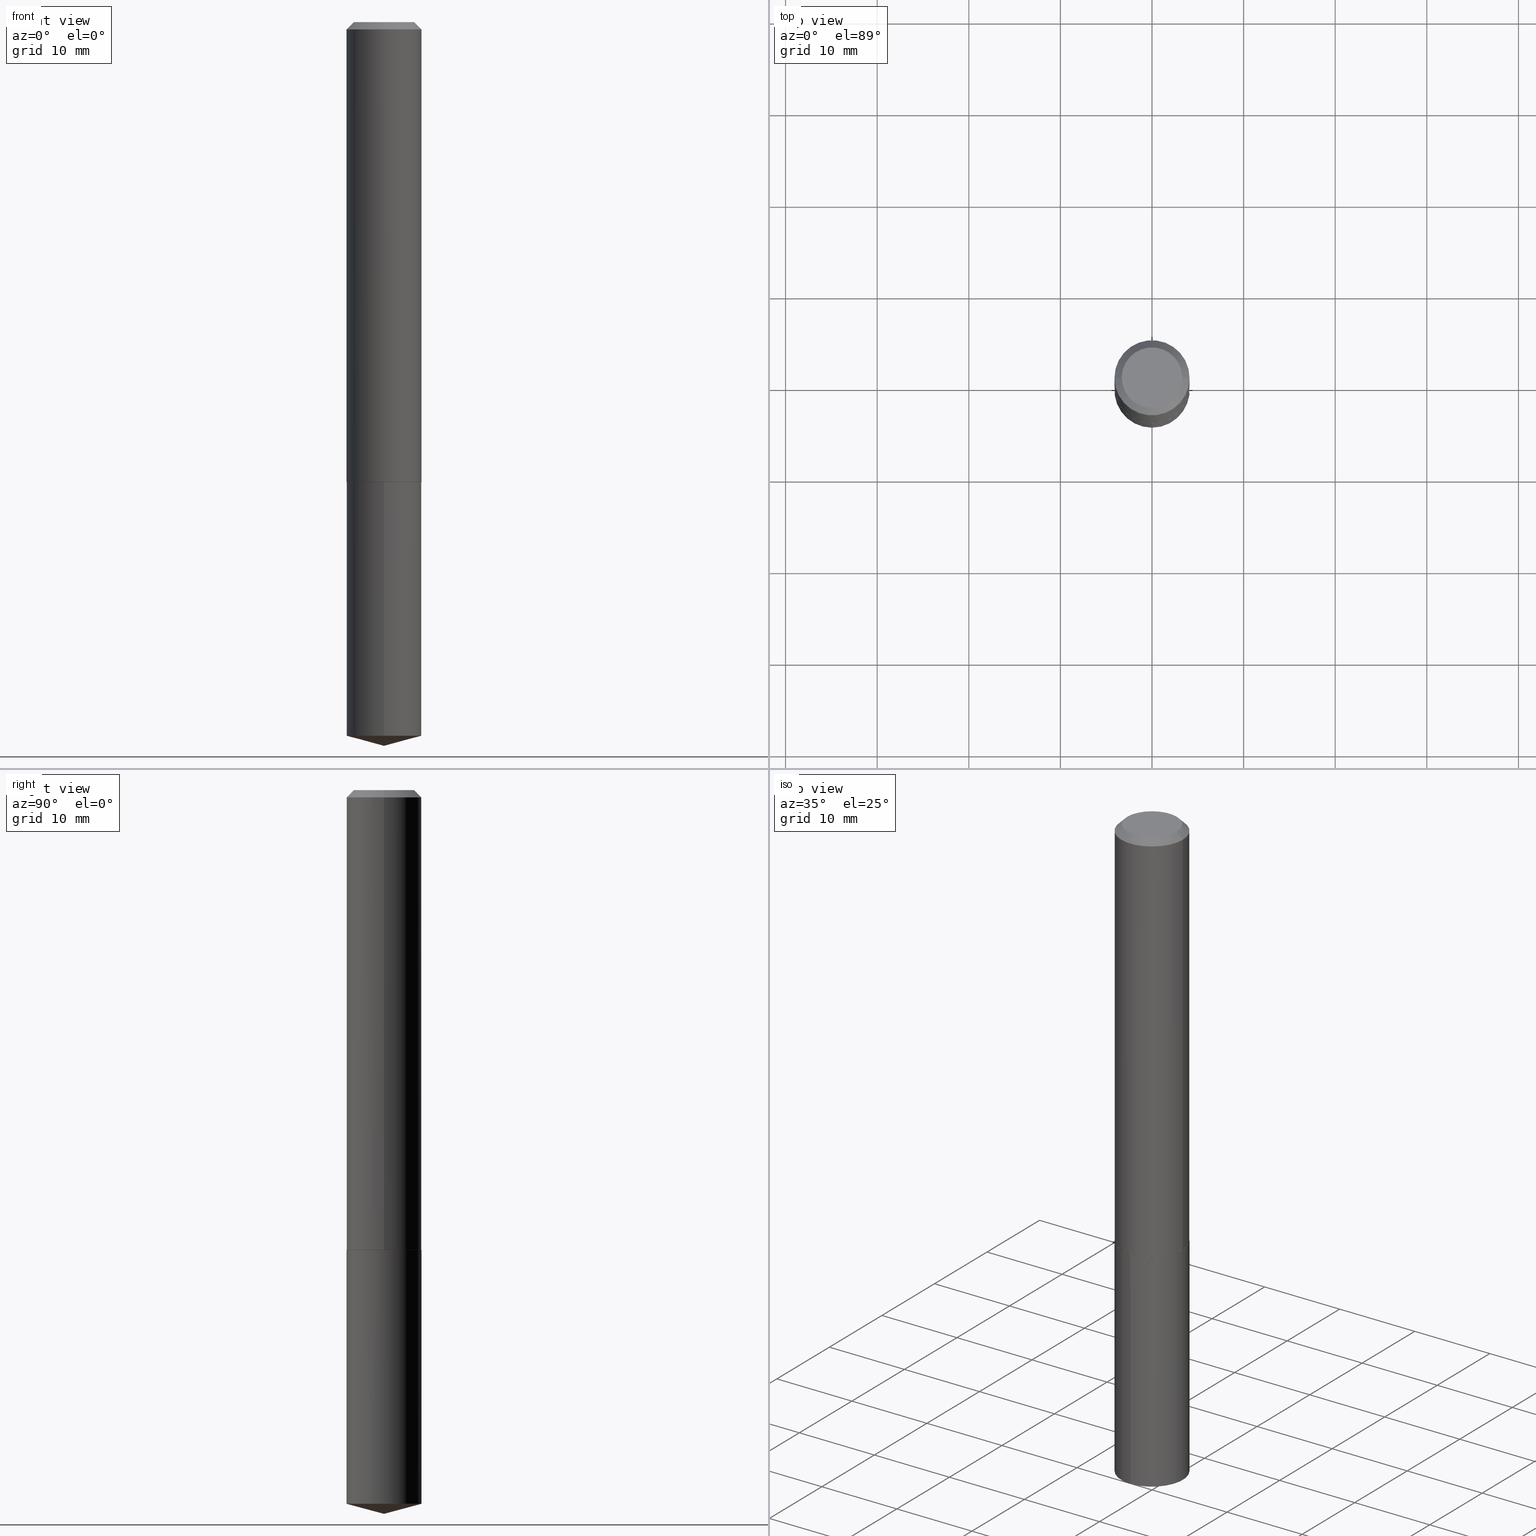
[diagram: canonical four-view strip — front | top / right | iso, engineering-drawing reading convention]
A machine part, canonical four-view strip (front | top / right | iso — engineering-drawing reading convention). The complete STEP part file that produces these views, byte-faithful:
ISO-10303-21;
HEADER;
FILE_DESCRIPTION (( 'STEP AP203' ),
    '1' );
FILE_NAME ('69017.STEP',
    '2024-04-23T14:21:37',
    ( '' ),
    ( '' ),
    'SwSTEP 2.0',
    'SolidWorks 2023',
    '' );
FILE_SCHEMA (( 'CONFIG_CONTROL_DESIGN' ));
ENDSEC;

DATA;
#1 = DIRECTION ( 'NONE',  ( -2.445468806185136597E-29, 3.491481338843145583E-15, 1.000000000000000000 ) ) ;
#2 = EDGE_LOOP ( 'NONE', ( #226, #380, #129, #104 ) ) ;
#3 = EDGE_CURVE ( 'NONE', #171, #206, #213, .T. ) ;
#4 = DIRECTION ( 'NONE',  ( 0.7071067811865452413, -7.319954787623248157E-15, -0.7071067811865497932 ) ) ;
#5 = CC_DESIGN_PERSON_AND_ORGANIZATION_ASSIGNMENT ( #154, #96, ( #368 ) ) ;
#6 = CARTESIAN_POINT ( 'NONE',  ( 0.000000000000000000, 0.000000000000000000, 0.000000000000000000 ) ) ;
#7 = EDGE_CURVE ( 'NONE', #228, #206, #263, .T. ) ;
#8 = PERSON ( 'UNSPECIFIED', 'UNSPECIFIED', 'UNSPECIFIED', ('UNSPECIFIED'), ('UNSPECIFIED'), ('UNSPECIFIED') ) ;
#9 = PERSON_AND_ORGANIZATION ( #8, #132 ) ;
#10 = UNCERTAINTY_MEASURE_WITH_UNIT (LENGTH_MEASURE( 1.000000000000000082E-05 ), #38, 'distance_accuracy_value', 'NONE');
#11 = DATE_TIME_ROLE ( 'creation_date' ) ;
#12 = EDGE_CURVE ( 'NONE', #138, #228, #279, .T. ) ;
#13 = CC_DESIGN_APPROVAL ( #39, ( #204 ) ) ;
#14 = ORIENTED_EDGE ( 'NONE', *, *, #309, .T. ) ;
#15 = CIRCLE ( 'NONE', #126, 0.1614000000000002100 ) ;
#16 = DIRECTION ( 'NONE',  ( -1.000000000000000000, 6.982962677686266711E-15, 0.000000000000000000 ) ) ;
#17 = ORIENTED_EDGE ( 'NONE', *, *, #336, .F. ) ;
#18 = LOCAL_TIME ( 10, 21, 37.00000000000000000, #42 ) ;
#19 = CONICAL_SURFACE ( 'NONE', #72, 0.1613999999999999879, 0.7853981633974450594 ) ;
#20 = CYLINDRICAL_SURFACE ( 'NONE', #249, 0.1613999999999999879 ) ;
#21 = VECTOR ( 'NONE', #111, 39.37007874015748143 ) ;
#22 = VERTEX_POINT ( 'NONE', #332 ) ;
#23 = CARTESIAN_POINT ( 'NONE',  ( -1.127050176178487994E-15, -0.1614000000000106461, -3.066953000341617663 ) ) ;
#24 = ORIENTED_EDGE ( 'NONE', *, *, #136, .F. ) ;
#25 = CC_DESIGN_DATE_AND_TIME_ASSIGNMENT ( #257, #11, ( #368 ) ) ;
#26 = CYLINDRICAL_SURFACE ( 'NONE', #197, 0.1614000000000000989 ) ;
#27 = ORIENTED_EDGE ( 'NONE', *, *, #136, .T. ) ;
#28 = FACE_OUTER_BOUND ( 'NONE', #78, .T. ) ;
#29 = AXIS2_PLACEMENT_3D ( 'NONE', #137, #81, #268 ) ;
#30 = VERTEX_POINT ( 'NONE', #144 ) ;
#31 = EDGE_CURVE ( 'NONE', #228, #48, #357, .T. ) ;
#32 = CARTESIAN_POINT ( 'NONE',  ( 0.1614000000000002100, -8.025519005464851751E-15, -1.975800000000000001 ) ) ;
#33 = CARTESIAN_POINT ( 'NONE',  ( -5.839929314523095191E-48, 8.337871319498967861E-34, 2.388061258337300918E-19 ) ) ;
#34 = CONICAL_SURFACE ( 'NONE', #256, 0.1614000000000002100, 0.7853981633973118326 ) ;
#35 =( NAMED_UNIT ( * ) PLANE_ANGLE_UNIT ( ) SI_UNIT ( $, .RADIAN. ) );
#36 = DIRECTION ( 'NONE',  ( 1.000000000000000000, -6.982962677686266711E-15, 0.000000000000000000 ) ) ;
#37 = AXIS2_PLACEMENT_3D ( 'NONE', #120, #182, #273 ) ;
#38 =( CONVERSION_BASED_UNIT ( 'INCH', #312 ) LENGTH_UNIT ( ) NAMED_UNIT ( #355 ) );
#39 = APPROVAL ( #161, 'UNSPECIFIED' ) ;
#40 = COORDINATED_UNIVERSAL_TIME_OFFSET ( 5, 0, .BEHIND. ) ;
#41 = AXIS2_PLACEMENT_3D ( 'NONE', #76, #326, #382 ) ;
#42 = COORDINATED_UNIVERSAL_TIME_OFFSET ( 5, 0, .BEHIND. ) ;
#43 = COORDINATED_UNIVERSAL_TIME_OFFSET ( 5, 0, .BEHIND. ) ;
#44 = MANIFOLD_SOLID_BREP ( 'Body-Move/Copy2[2]', #169 ) ;
#45 = ORIENTED_EDGE ( 'NONE', *, *, #283, .T. ) ;
#46 = CARTESIAN_POINT ( 'NONE',  ( 7.642090019328602662E-31, -1.091087918388490267E-16, -0.03125000000000020817 ) ) ;
#47 = CC_DESIGN_DATE_AND_TIME_ASSIGNMENT ( #367, #70, ( #155 ) ) ;
#48 = VERTEX_POINT ( 'NONE', #60 ) ;
#49 = DIRECTION ( 'NONE',  ( -2.445414552692694796E-29, 3.491559032932239035E-15, 1.000000000000000000 ) ) ;
#50 = EDGE_LOOP ( 'NONE', ( #148, #88, #265, #267 ) ) ;
#51 = MANIFOLD_SOLID_BREP ( 'Body-Move/Copy2[1]', #236 ) ;
#52 = CARTESIAN_POINT ( 'NONE',  ( -5.839929314523095191E-48, 8.337871319498967861E-34, 2.388061258337300918E-19 ) ) ;
#53 = CIRCLE ( 'NONE', #222, 0.1609000000000004593 ) ;
#54 = ORIENTED_EDGE ( 'NONE', *, *, #351, .T. ) ;
#55 = CARTESIAN_POINT ( 'NONE',  ( 0.1613999999999999879, -1.236158968017412234E-15, -0.03125000000000020817 ) ) ;
#56 = CARTESIAN_POINT ( 'NONE',  ( 7.642090019328602662E-31, -1.091087918388490267E-16, -0.03125000000000020817 ) ) ;
#57 = CARTESIAN_POINT ( 'NONE',  ( -0.1613999999999999879, 1.017941384339714230E-15, -0.03125000000000020817 ) ) ;
#58 = FACE_OUTER_BOUND ( 'NONE', #2, .T. ) ;
#59 = AXIS2_PLACEMENT_3D ( 'NONE', #307, #253, #36 ) ;
#60 = CARTESIAN_POINT ( 'NONE',  ( -0.1613999999999999879, -2.356972835045764977E-15, -0.03125000000000020817 ) ) ;
#61 = PERSON_AND_ORGANIZATION ( #8, #132 ) ;
#62 = FACE_OUTER_BOUND ( 'NONE', #288, .T. ) ;
#63 = DIRECTION ( 'NONE',  ( 1.000000000000000000, -6.982962677686266711E-15, 0.000000000000000000 ) ) ;
#64 = ADVANCED_FACE ( 'NONE', ( #62 ), #92, .F. ) ;
#65 = CARTESIAN_POINT ( 'NONE',  ( -0.1614000000000000989, 1.146815975516802403E-15, -7.939161235671423092E-30 ) ) ;
#66 = CARTESIAN_POINT ( 'NONE',  ( 0.1613999999999999879, -1.216393168679174147E-15, -0.03125000000000020817 ) ) ;
#67 = CONICAL_SURFACE ( 'NONE', #286, 146.9311341562595885, 1.308996938995754977 ) ;
#68 = CARTESIAN_POINT ( 'NONE',  ( 4.832980001663685166E-29, -6.900214569955707952E-15, -1.976299999999999946 ) ) ;
#69 = APPROVAL_PERSON_ORGANIZATION ( #99, #341, #337 ) ;
#70 = DATE_TIME_ROLE ( 'classification_date' ) ;
#71 = PERSON_AND_ORGANIZATION ( #8, #132 ) ;
#72 = AXIS2_PLACEMENT_3D ( 'NONE', #56, #347, #266 ) ;
#73 = CIRCLE ( 'NONE', #186, 0.1301499999999999879 ) ;
#74 = EDGE_CURVE ( 'NONE', #174, #48, #384, .T. ) ;
#75 = ORIENTED_EDGE ( 'NONE', *, *, #340, .F. ) ;
#76 = CARTESIAN_POINT ( 'NONE',  ( 4.831757267260592925E-29, -6.898468829286286448E-15, -1.975800000000000001 ) ) ;
#77 = LINE ( 'NONE', #198, #178 ) ;
#78 = EDGE_LOOP ( 'NONE', ( #231, #45, #372 ) ) ;
#79 = FACE_OUTER_BOUND ( 'NONE', #376, .T. ) ;
#80 = ORIENTED_EDGE ( 'NONE', *, *, #82, .F. ) ;
#81 = DIRECTION ( 'NONE',  ( -2.438088387897960049E-29, 3.491481338843145188E-15, 1.000000000000000000 ) ) ;
#82 = EDGE_CURVE ( 'NONE', #199, #22, #325, .T. ) ;
#83 = VECTOR ( 'NONE', #116, 39.37007874015748143 ) ;
#84 = EDGE_LOOP ( 'NONE', ( #107, #334, #297, #348 ) ) ;
#85 = DIRECTION ( 'NONE',  ( 1.000000000000000000, -6.982962677686265133E-15, 4.876176775795935793E-29 ) ) ;
#86 = DIRECTION ( 'NONE',  ( -2.445468806185136877E-29, 3.491481338843145188E-15, 1.000000000000000000 ) ) ;
#87 = EDGE_CURVE ( 'NONE', #245, #48, #388, .T. ) ;
#88 = ORIENTED_EDGE ( 'NONE', *, *, #7, .T. ) ;
#89 = APPLICATION_PROTOCOL_DEFINITION ( 'international standard', 'config_control_design', 1994, #259 ) ;
#90 = DIRECTION ( 'NONE',  ( 6.982962677686265922E-15, 1.000000000000000000, -3.491559032932239035E-15 ) ) ;
#91 = DIRECTION ( 'NONE',  ( 1.000000000000000000, -6.982962677686266711E-15, 0.000000000000000000 ) ) ;
#92 = PLANE ( 'NONE',  #278 ) ;
#93 = LINE ( 'NONE', #183, #108 ) ;
#94 = FACE_OUTER_BOUND ( 'NONE', #195, .T. ) ;
#95 = APPROVAL_STATUS ( 'not_yet_approved' ) ;
#96 = PERSON_AND_ORGANIZATION_ROLE ( 'creator' ) ;
#97 = APPROVAL_ROLE ( '' ) ;
#98 = EDGE_CURVE ( 'NONE', #199, #30, #114, .T. ) ;
#99 = PERSON_AND_ORGANIZATION ( #8, #132 ) ;
#100 = VERTEX_POINT ( 'NONE', #310 ) ;
#101 = VECTOR ( 'NONE', #328, 39.37007874015748143 ) ;
#102 = FACE_OUTER_BOUND ( 'NONE', #383, .T. ) ;
#103 = CARTESIAN_POINT ( 'NONE',  ( 7.605944664545362326E-29, -1.085913981056929963E-14, -3.110199999999999854 ) ) ;
#104 = ORIENTED_EDGE ( 'NONE', *, *, #127, .F. ) ;
#105 = PRODUCT ( '69017', '69017', '', ( #209 ) ) ;
#106 = DIRECTION ( 'NONE',  ( -1.000000000000000000, 6.982962677686265922E-15, -4.876176775795935793E-29 ) ) ;
#107 = ORIENTED_EDGE ( 'NONE', *, *, #12, .F. ) ;
#108 = VECTOR ( 'NONE', #274, 39.37007874015748143 ) ;
#109 = DIRECTION ( 'NONE',  ( -2.445414552692694796E-29, 3.491559032932239035E-15, 1.000000000000000000 ) ) ;
#110 = EDGE_CURVE ( 'NONE', #245, #100, #73, .T. ) ;
#111 = DIRECTION ( 'NONE',  ( -2.445414552692694796E-29, 3.491559032932239035E-15, 1.000000000000000000 ) ) ;
#112 = FACE_OUTER_BOUND ( 'NONE', #235, .T. ) ;
#113 = EDGE_CURVE ( 'NONE', #138, #171, #53, .T. ) ;
#114 = LINE ( 'NONE', #331, #21 ) ;
#115 = PERSON_AND_ORGANIZATION ( #8, #132 ) ;
#116 = DIRECTION ( 'NONE',  ( -0.7071067811865452413, 2.468850131082233000E-15, -0.7071067811865497932 ) ) ;
#117 = LINE ( 'NONE', #66, #221 ) ;
#118 = DIRECTION ( 'NONE',  ( -2.445468806185136597E-29, 3.491481338843145583E-15, 1.000000000000000000 ) ) ;
#119 = CARTESIAN_POINT ( 'NONE',  ( 4.831757267260592925E-29, -6.898468829286286448E-15, -1.975800000000000001 ) ) ;
#120 = CARTESIAN_POINT ( 'NONE',  ( 7.500078720637030197E-29, -1.070829390509313409E-14, -3.066953000341618107 ) ) ;
#121 = CC_DESIGN_SECURITY_CLASSIFICATION ( #155, ( #204 ) ) ;
#122 =( NAMED_UNIT ( * ) SI_UNIT ( $, .STERADIAN. ) SOLID_ANGLE_UNIT ( ) );
#123 = DIRECTION ( 'NONE',  ( 0.000000000000000000, 0.000000000000000000, 1.000000000000000000 ) ) ;
#124 = PERSON_AND_ORGANIZATION ( #8, #132 ) ;
#125 = DESIGN_CONTEXT ( 'detailed design', #259, 'design' ) ;
#126 = AXIS2_PLACEMENT_3D ( 'NONE', #350, #327, #345 ) ;
#127 = EDGE_CURVE ( 'NONE', #206, #174, #184, .T. ) ;
#128 = CALENDAR_DATE ( 2024, 23, 4 ) ;
#129 = ORIENTED_EDGE ( 'NONE', *, *, #74, .F. ) ;
#130 = CARTESIAN_POINT ( 'NONE',  ( 1.146815975516876556E-15, 0.1613999999999930768, -1.976300000000000390 ) ) ;
#131 = VERTEX_POINT ( 'NONE', #130 ) ;
#132 = ORGANIZATION ( 'UNSPECIFIED', 'UNSPECIFIED', '' ) ;
#133 = DIRECTION ( 'NONE',  ( 2.438088387897960049E-29, -3.491481338843145188E-15, -1.000000000000000000 ) ) ;
#134 = CARTESIAN_POINT ( 'NONE',  ( -2.919964657261547595E-48, 4.168935659749483931E-34, 1.194030629168650459E-19 ) ) ;
#135 = ORIENTED_EDGE ( 'NONE', *, *, #340, .T. ) ;
#136 = EDGE_CURVE ( 'NONE', #30, #131, #313, .T. ) ;
#137 = CARTESIAN_POINT ( 'NONE',  ( 4.832980001663685166E-29, -6.900214569955707952E-15, -1.976299999999999946 ) ) ;
#138 = VERTEX_POINT ( 'NONE', #241 ) ;
#139 = ADVANCED_FACE ( 'NONE', ( #28 ), #67, .T. ) ;
#140 = CARTESIAN_POINT ( 'NONE',  ( 4.832980001663685166E-29, -6.900214569955707952E-15, -1.976299999999999946 ) ) ;
#141 = DIRECTION ( 'NONE',  ( -0.7071067811864509833, 7.493145998870005484E-15, 0.7071067811866440511 ) ) ;
#142 = DIRECTION ( 'NONE',  ( -6.982962677686265922E-15, -1.000000000000000000, 3.510303681827531176E-15 ) ) ;
#143 = ADVANCED_FACE ( 'NONE', ( #323 ), #212, .T. ) ;
#144 = CARTESIAN_POINT ( 'NONE',  ( -1.127050176178515013E-15, -0.1614000000000068713, -1.976299999999999280 ) ) ;
#145 = CARTESIAN_POINT ( 'NONE',  ( 4.831757267260592925E-29, -6.898468829286286448E-15, -1.975800000000000001 ) ) ;
#146 = CIRCLE ( 'NONE', #292, 0.1609000000000004593 ) ;
#147 = DIRECTION ( 'NONE',  ( -6.982962677686266711E-15, -1.000000000000000000, 3.385189583227092077E-15 ) ) ;
#148 = ORIENTED_EDGE ( 'NONE', *, *, #31, .F. ) ;
#149 = EDGE_CURVE ( 'NONE', #100, #245, #375, .T. ) ;
#150 = CARTESIAN_POINT ( 'NONE',  ( -8.867032792887644525E-28, 1.266036606950527805E-13, 36.25987874015748247 ) ) ;
#151 = AXIS2_PLACEMENT_3D ( 'NONE', #358, #361, #329 ) ;
#152 = CC_DESIGN_PERSON_AND_ORGANIZATION_ASSIGNMENT ( #71, #254, ( #204 ) ) ;
#153 = AXIS2_PLACEMENT_3D ( 'NONE', #176, #109, #301 ) ;
#154 = PERSON_AND_ORGANIZATION ( #8, #132 ) ;
#155 = SECURITY_CLASSIFICATION ( '', '', #317 ) ;
#156 = DATE_AND_TIME ( #255, #359 ) ;
#157 = CC_DESIGN_PERSON_AND_ORGANIZATION_ASSIGNMENT ( #371, #370, ( #155 ) ) ;
#158 = PERSON_AND_ORGANIZATION_ROLE ( 'design_supplier' ) ;
#159 = CIRCLE ( 'NONE', #234, 0.1613999999999999879 ) ;
#160 = VECTOR ( 'NONE', #141, 39.37007874015748143 ) ;
#161 = APPROVAL_STATUS ( 'not_yet_approved' ) ;
#162 = AXIS2_PLACEMENT_3D ( 'NONE', #52, #294, #353 ) ;
#163 = ORIENTED_EDGE ( 'NONE', *, *, #149, .F. ) ;
#164 = ADVANCED_FACE ( 'NONE', ( #112 ), #20, .T. ) ;
#165 = DIRECTION ( 'NONE',  ( -2.445414552692694796E-29, 3.491559032932239035E-15, 1.000000000000000000 ) ) ;
#166 = ORIENTED_EDGE ( 'NONE', *, *, #98, .T. ) ;
#167 = DIRECTION ( 'NONE',  ( -2.445468806185136597E-29, 3.491481338843145583E-15, 1.000000000000000000 ) ) ;
#168 = ORIENTED_EDGE ( 'NONE', *, *, #149, .T. ) ;
#169 = CLOSED_SHELL ( 'NONE', ( #250, #316, #339, #290, #143, #193, #238, #276 ) ) ;
#170 = CARTESIAN_POINT ( 'NONE',  ( 0.000000000000000000, 0.000000000000000000, 0.000000000000000000 ) ) ;
#171 = VERTEX_POINT ( 'NONE', #207 ) ;
#172 = EDGE_CURVE ( 'NONE', #344, #22, #379, .T. ) ;
#173 = DIRECTION ( 'NONE',  ( -6.982962677686266711E-15, -1.000000000000000000, 3.385189583227092077E-15 ) ) ;
#174 = VERTEX_POINT ( 'NONE', #55 ) ;
#175 = AXIS2_PLACEMENT_3D ( 'NONE', #319, #165, #320 ) ;
#176 = CARTESIAN_POINT ( 'NONE',  ( 4.832980001663685166E-29, -6.900214569955707952E-15, -1.976299999999999946 ) ) ;
#177 = CARTESIAN_POINT ( 'NONE',  ( -0.1614000000000002100, -5.751652853769483256E-15, -1.975800000000000001 ) ) ;
#178 = VECTOR ( 'NONE', #377, 39.37007874015748854 ) ;
#179 = DIRECTION ( 'NONE',  ( -2.445414552692694796E-29, 3.491559032932239035E-15, 1.000000000000000000 ) ) ;
#180 = DIRECTION ( 'NONE',  ( -2.445468806185136597E-29, 3.491481338843145583E-15, 1.000000000000000000 ) ) ;
#181 = APPROVAL_STATUS ( 'not_yet_approved' ) ;
#182 = DIRECTION ( 'NONE',  ( -2.445414552692694796E-29, 3.491559032932239035E-15, 1.000000000000000000 ) ) ;
#183 = CARTESIAN_POINT ( 'NONE',  ( 1.146815975516849537E-15, 0.1613999999999930768, -1.976300000000000390 ) ) ;
#184 = LINE ( 'NONE', #208, #281 ) ;
#185 = CARTESIAN_POINT ( 'NONE',  ( 7.642090019328602662E-31, -1.091087918388490267E-16, -0.03125000000000020817 ) ) ;
#186 = AXIS2_PLACEMENT_3D ( 'NONE', #33, #275, #239 ) ;
#187 = APPLICATION_PROTOCOL_DEFINITION ( 'international standard', 'config_control_design', 1994, #284 ) ;
#188 = APPROVAL_ROLE ( '' ) ;
#189 = CC_DESIGN_APPROVAL ( #223, ( #368 ) ) ;
#190 = VECTOR ( 'NONE', #362, 39.37007874015748143 ) ;
#191 = PRODUCT_DEFINITION_SHAPE ( 'NONE', 'NONE',  #368 ) ;
#192 = ORIENTED_EDGE ( 'NONE', *, *, #385, .F. ) ;
#193 = ADVANCED_FACE ( 'NONE', ( #386 ), #26, .T. ) ;
#194 = FACE_OUTER_BOUND ( 'NONE', #346, .T. ) ;
#195 = EDGE_LOOP ( 'NONE', ( #225, #260, #80 ) ) ;
#196 = LOCAL_TIME ( 10, 21, 37.00000000000000000, #40 ) ;
#197 = AXIS2_PLACEMENT_3D ( 'NONE', #170, #167, #85 ) ;
#198 = CARTESIAN_POINT ( 'NONE',  ( 7.605728341784818752E-29, -1.085944690422585287E-14, -3.110199999999999854 ) ) ;
#199 = VERTEX_POINT ( 'NONE', #23 ) ;
#200 = CARTESIAN_POINT ( 'NONE',  ( -8.867032792887644525E-28, 1.266036606950527805E-13, 36.25987874015748247 ) ) ;
#201 = CIRCLE ( 'NONE', #349, 0.1613999999999999879 ) ;
#202 = ADVANCED_FACE ( 'NONE', ( #194 ), #374, .T. ) ;
#203 = ORIENTED_EDGE ( 'NONE', *, *, #113, .F. ) ;
#204 = PRODUCT_DEFINITION_FORMATION_WITH_SPECIFIED_SOURCE ( 'ANY', '', #105, .NOT_KNOWN. ) ;
#205 = DIRECTION ( 'NONE',  ( -2.445414552692694796E-29, 3.491559032932239035E-15, 1.000000000000000000 ) ) ;
#206 = VERTEX_POINT ( 'NONE', #264 ) ;
#207 = CARTESIAN_POINT ( 'NONE',  ( 0.1609000000000004593, -8.023773264795431036E-15, -1.976299999999999946 ) ) ;
#208 = CARTESIAN_POINT ( 'NONE',  ( 0.1614000000000000989, -1.127050176178563922E-15, 7.870149316134644921E-30 ) ) ;
#209 = MECHANICAL_CONTEXT ( 'NONE', #284, 'mechanical' ) ;
#210 = ORIENTED_EDGE ( 'NONE', *, *, #309, .F. ) ;
#211 = CARTESIAN_POINT ( 'NONE',  ( 4.832980001663685166E-29, -6.900214569955707952E-15, -1.976299999999999946 ) ) ;
#212 = CONICAL_SURFACE ( 'NONE', #41, 0.1614000000000002100, 0.7853981633973118326 ) ;
#213 = LINE ( 'NONE', #32, #101 ) ;
#214 = DIRECTION ( 'NONE',  ( 1.000000000000000000, -6.982962677686268288E-15, 0.000000000000000000 ) ) ;
#215 = CARTESIAN_POINT ( 'NONE',  ( 4.832980001663685166E-29, -6.900214569955707952E-15, -1.976299999999999946 ) ) ;
#216 = DIRECTION ( 'NONE',  ( 1.000000000000000000, -6.982962677686265133E-15, 4.876176775795935793E-29 ) ) ;
#217 = CALENDAR_DATE ( 2024, 23, 4 ) ;
#218 = CC_DESIGN_APPROVAL ( #341, ( #155 ) ) ;
#219 = COORDINATED_UNIVERSAL_TIME_OFFSET ( 5, 0, .BEHIND. ) ;
#220 = APPROVAL_DATE_TIME ( #315, #341 ) ;
#221 = VECTOR ( 'NONE', #4, 39.37007874015748143 ) ;
#222 = AXIS2_PLACEMENT_3D ( 'NONE', #360, #118, #390 ) ;
#223 = APPROVAL ( #181, 'UNSPECIFIED' ) ;
#224 = CALENDAR_DATE ( 2024, 23, 4 ) ;
#225 = ORIENTED_EDGE ( 'NONE', *, *, #283, .F. ) ;
#226 = ORIENTED_EDGE ( 'NONE', *, *, #229, .T. ) ;
#227 = PLANE ( 'NONE',  #293 ) ;
#228 = VERTEX_POINT ( 'NONE', #289 ) ;
#229 = EDGE_CURVE ( 'NONE', #206, #228, #15, .T. ) ;
#230 = FACE_OUTER_BOUND ( 'NONE', #324, .T. ) ;
#231 = ORIENTED_EDGE ( 'NONE', *, *, #172, .F. ) ;
#232 = PLANE ( 'NONE',  #29 ) ;
#233 = CC_DESIGN_PERSON_AND_ORGANIZATION_ASSIGNMENT ( #124, #158, ( #204 ) ) ;
#234 = AXIS2_PLACEMENT_3D ( 'NONE', #185, #333, #63 ) ;
#235 = EDGE_LOOP ( 'NONE', ( #243, #262, #24, #352 ) ) ;
#236 = CLOSED_SHELL ( 'NONE', ( #164, #304, #139, #202, #64 ) ) ;
#237 = DIRECTION ( 'NONE',  ( -6.982962677686265922E-15, -1.000000000000000000, 3.510303681827531176E-15 ) ) ;
#238 = ADVANCED_FACE ( 'NONE', ( #230 ), #364, .T. ) ;
#239 = DIRECTION ( 'NONE',  ( 1.000000000000000000, -6.982962677686266711E-15, 4.876182450887182109E-29 ) ) ;
#240 = LOCAL_TIME ( 10, 21, 37.00000000000000000, #43 ) ;
#241 = CARTESIAN_POINT ( 'NONE',  ( -0.1609000000000004593, -5.754302080943593669E-15, -1.976299999999999946 ) ) ;
#242 = CC_DESIGN_PERSON_AND_ORGANIZATION_ASSIGNMENT ( #115, #244, ( #105 ) ) ;
#243 = ORIENTED_EDGE ( 'NONE', *, *, #82, .T. ) ;
#244 = PERSON_AND_ORGANIZATION_ROLE ( 'design_owner' ) ;
#245 = VERTEX_POINT ( 'NONE', #261 ) ;
#246 = AXIS2_PLACEMENT_3D ( 'NONE', #150, #179, #142 ) ;
#247 = CARTESIAN_POINT ( 'NONE',  ( 0.000000000000000000, 0.000000000000000000, 0.000000000000000000 ) ) ;
#248 = ORIENTED_EDGE ( 'NONE', *, *, #110, .F. ) ;
#249 = AXIS2_PLACEMENT_3D ( 'NONE', #140, #205, #173 ) ;
#250 = ADVANCED_FACE ( 'NONE', ( #296 ), #19, .T. ) ;
#251 = DIRECTION ( 'NONE',  ( -2.445414552692694796E-29, 3.491559032932239035E-15, 1.000000000000000000 ) ) ;
#252 = LOCAL_TIME ( 10, 21, 37.00000000000000000, #219 ) ;
#253 = DIRECTION ( 'NONE',  ( -2.445468806185136597E-29, 3.491481338843145583E-15, 1.000000000000000000 ) ) ;
#254 = PERSON_AND_ORGANIZATION_ROLE ( 'creator' ) ;
#255 = CALENDAR_DATE ( 2024, 23, 4 ) ;
#256 = AXIS2_PLACEMENT_3D ( 'NONE', #119, #1, #214 ) ;
#257 = DATE_AND_TIME ( #366, #18 ) ;
#258 = APPROVAL_DATE_TIME ( #156, #223 ) ;
#259 = APPLICATION_CONTEXT ( 'configuration controlled 3d designs of mechanical parts and assemblies' ) ;
#260 = ORIENTED_EDGE ( 'NONE', *, *, #172, .T. ) ;
#261 = CARTESIAN_POINT ( 'NONE',  ( -0.1301499999999999879, 9.633869884202906654E-16, 2.388061258271836633E-19 ) ) ;
#262 = ORIENTED_EDGE ( 'NONE', *, *, #385, .T. ) ;
#263 = CIRCLE ( 'NONE', #335, 0.1614000000000002100 ) ;
#264 = CARTESIAN_POINT ( 'NONE',  ( 0.1614000000000002100, -8.025519005464851751E-15, -1.975800000000000001 ) ) ;
#265 = ORIENTED_EDGE ( 'NONE', *, *, #127, .T. ) ;
#266 = DIRECTION ( 'NONE',  ( -1.000000000000000000, 6.982962677686266711E-15, 0.000000000000000000 ) ) ;
#267 = ORIENTED_EDGE ( 'NONE', *, *, #351, .F. ) ;
#268 = DIRECTION ( 'NONE',  ( 1.000000000000000000, -6.982962677686265922E-15, 4.876176775795935793E-29 ) ) ;
#269 = ORIENTED_EDGE ( 'NONE', *, *, #87, .F. ) ;
#270 = DIRECTION ( 'NONE',  ( 6.863315791527704515E-15, 0.9659258262890710878, 0.2588190451025098038 ) ) ;
#271 = VECTOR ( 'NONE', #270, 39.37007874015748854 ) ;
#272 = DIRECTION ( 'NONE',  ( 2.445414552692694516E-29, -3.491559032932239035E-15, -1.000000000000000000 ) ) ;
#273 = DIRECTION ( 'NONE',  ( -6.982962677686266711E-15, -1.000000000000000000, 3.385189583227092077E-15 ) ) ;
#274 = DIRECTION ( 'NONE',  ( -2.445414552692694796E-29, 3.491559032932239035E-15, 1.000000000000000000 ) ) ;
#275 = DIRECTION ( 'NONE',  ( -2.445468806185136597E-29, 3.491481338843145583E-15, 1.000000000000000000 ) ) ;
#276 = ADVANCED_FACE ( 'NONE', ( #102 ), #227, .F. ) ;
#277 = CYLINDRICAL_SURFACE ( 'NONE', #330, 0.1614000000000000989 ) ;
#278 = AXIS2_PLACEMENT_3D ( 'NONE', #215, #272, #90 ) ;
#279 = LINE ( 'NONE', #177, #160 ) ;
#280 = CIRCLE ( 'NONE', #151, 0.1613999999999999879 ) ;
#281 = VECTOR ( 'NONE', #86, 39.37007874015748143 ) ;
#282 = APPROVAL_DATE_TIME ( #342, #39 ) ;
#283 = EDGE_CURVE ( 'NONE', #344, #199, #77, .T. ) ;
#284 = APPLICATION_CONTEXT ( 'configuration controlled 3d designs of mechanical parts and assemblies' ) ;
#285 = SHAPE_DEFINITION_REPRESENTATION ( #191, #369 ) ;
#286 = AXIS2_PLACEMENT_3D ( 'NONE', #200, #49, #237 ) ;
#287 = PRODUCT_RELATED_PRODUCT_CATEGORY ( 'detail', '', ( #105 ) ) ;
#288 = EDGE_LOOP ( 'NONE', ( #27, #135 ) ) ;
#289 = CARTESIAN_POINT ( 'NONE',  ( -0.1614000000000002100, -5.751652853769483256E-15, -1.975800000000000001 ) ) ;
#290 = ADVANCED_FACE ( 'NONE', ( #79 ), #232, .F. ) ;
#291 = ORIENTED_EDGE ( 'NONE', *, *, #12, .T. ) ;
#292 = AXIS2_PLACEMENT_3D ( 'NONE', #68, #305, #91 ) ;
#293 = AXIS2_PLACEMENT_3D ( 'NONE', #134, #133, #106 ) ;
#294 = DIRECTION ( 'NONE',  ( -2.445468806185136597E-29, 3.491481338843145583E-15, 1.000000000000000000 ) ) ;
#295 = ORIENTED_EDGE ( 'NONE', *, *, #74, .T. ) ;
#296 = FACE_OUTER_BOUND ( 'NONE', #343, .T. ) ;
#297 = ORIENTED_EDGE ( 'NONE', *, *, #3, .T. ) ;
#298 = DIRECTION ( 'NONE',  ( 2.445468806185136597E-29, -3.491481338843145583E-15, -1.000000000000000000 ) ) ;
#299 = ORIENTED_EDGE ( 'NONE', *, *, #87, .T. ) ;
#300 = EDGE_CURVE ( 'NONE', #22, #199, #280, .T. ) ;
#301 = DIRECTION ( 'NONE',  ( -6.982962677686266711E-15, -1.000000000000000000, 3.385189583227092077E-15 ) ) ;
#302 =( GEOMETRIC_REPRESENTATION_CONTEXT ( 3 ) GLOBAL_UNCERTAINTY_ASSIGNED_CONTEXT ( ( #10 ) ) GLOBAL_UNIT_ASSIGNED_CONTEXT ( ( #38, #35, #122 ) ) REPRESENTATION_CONTEXT ( 'NONE', 'WORKASPACE' ) );
#303 = ORIENTED_EDGE ( 'NONE', *, *, #229, .F. ) ;
#304 = ADVANCED_FACE ( 'NONE', ( #94 ), #306, .T. ) ;
#305 = DIRECTION ( 'NONE',  ( -2.445468806185136597E-29, 3.491481338843145583E-15, 1.000000000000000000 ) ) ;
#306 = CONICAL_SURFACE ( 'NONE', #246, 146.9311341562595885, 1.308996938995754977 ) ;
#307 = CARTESIAN_POINT ( 'NONE',  ( 7.642090019328602662E-31, -1.091087918388490267E-16, -0.03125000000000020817 ) ) ;
#308 = DIRECTION ( 'NONE',  ( -2.445468806185136597E-29, 3.491481338843145583E-15, 1.000000000000000000 ) ) ;
#309 = EDGE_CURVE ( 'NONE', #100, #174, #117, .T. ) ;
#310 = CARTESIAN_POINT ( 'NONE',  ( 0.1301499999999999879, -1.054643491544569416E-15, 2.388061258405951654E-19 ) ) ;
#311 = DIRECTION ( 'NONE',  ( 1.000000000000000000, -6.982962677686268288E-15, 0.000000000000000000 ) ) ;
#312 = LENGTH_MEASURE_WITH_UNIT ( LENGTH_MEASURE( 0.02539999999999999897 ), #389 );
#313 = CIRCLE ( 'NONE', #153, 0.1613999999999999879 ) ;
#314 = APPROVAL_PERSON_ORGANIZATION ( #61, #223, #188 ) ;
#315 = DATE_AND_TIME ( #224, #252 ) ;
#316 = ADVANCED_FACE ( 'NONE', ( #58 ), #277, .T. ) ;
#317 = SECURITY_CLASSIFICATION_LEVEL ( 'unclassified' ) ;
#318 = ORIENTED_EDGE ( 'NONE', *, *, #336, .T. ) ;
#319 = CARTESIAN_POINT ( 'NONE',  ( 4.832980001663685166E-29, -6.900214569955707952E-15, -1.976299999999999946 ) ) ;
#320 = DIRECTION ( 'NONE',  ( -6.982962677686266711E-15, -1.000000000000000000, 3.385189583227092077E-15 ) ) ;
#321 = ORIENTED_EDGE ( 'NONE', *, *, #300, .T. ) ;
#322 = APPROVAL_PERSON_ORGANIZATION ( #9, #39, #97 ) ;
#323 = FACE_OUTER_BOUND ( 'NONE', #84, .T. ) ;
#324 = EDGE_LOOP ( 'NONE', ( #210, #248, #299, #54 ) ) ;
#325 = CIRCLE ( 'NONE', #37, 0.1613999999999999879 ) ;
#326 = DIRECTION ( 'NONE',  ( -2.445468806185136597E-29, 3.491481338843145583E-15, 1.000000000000000000 ) ) ;
#327 = DIRECTION ( 'NONE',  ( -2.445468806185136597E-29, 3.491481338843145583E-15, 1.000000000000000000 ) ) ;
#328 = DIRECTION ( 'NONE',  ( 0.7071067811864509833, -2.468850131081245741E-15, 0.7071067811866440511 ) ) ;
#329 = DIRECTION ( 'NONE',  ( -6.982962677686266711E-15, -1.000000000000000000, 3.385189583227092077E-15 ) ) ;
#330 = AXIS2_PLACEMENT_3D ( 'NONE', #247, #308, #216 ) ;
#331 = CARTESIAN_POINT ( 'NONE',  ( -1.127050176178515013E-15, -0.1614000000000068713, -1.976299999999999280 ) ) ;
#332 = CARTESIAN_POINT ( 'NONE',  ( 1.146815975516876162E-15, 0.1613999999999892188, -3.066953000341618552 ) ) ;
#333 = DIRECTION ( 'NONE',  ( -2.445468806185136597E-29, 3.491481338843145583E-15, 1.000000000000000000 ) ) ;
#334 = ORIENTED_EDGE ( 'NONE', *, *, #113, .T. ) ;
#335 = AXIS2_PLACEMENT_3D ( 'NONE', #145, #180, #311 ) ;
#336 = EDGE_CURVE ( 'NONE', #171, #138, #146, .T. ) ;
#337 = APPROVAL_ROLE ( '' ) ;
#338 = COORDINATED_UNIVERSAL_TIME_OFFSET ( 5, 0, .BEHIND. ) ;
#339 = ADVANCED_FACE ( 'NONE', ( #365 ), #34, .T. ) ;
#340 = EDGE_CURVE ( 'NONE', #131, #30, #201, .T. ) ;
#341 = APPROVAL ( #95, 'UNSPECIFIED' ) ;
#342 = DATE_AND_TIME ( #217, #196 ) ;
#343 = EDGE_LOOP ( 'NONE', ( #163, #14, #295, #269 ) ) ;
#344 = VERTEX_POINT ( 'NONE', #363 ) ;
#345 = DIRECTION ( 'NONE',  ( 1.000000000000000000, -6.982962677686268288E-15, 0.000000000000000000 ) ) ;
#346 = EDGE_LOOP ( 'NONE', ( #192, #321, #166, #75 ) ) ;
#347 = DIRECTION ( 'NONE',  ( 2.445468806185136597E-29, -3.491481338843145583E-15, -1.000000000000000000 ) ) ;
#348 = ORIENTED_EDGE ( 'NONE', *, *, #7, .F. ) ;
#349 = AXIS2_PLACEMENT_3D ( 'NONE', #211, #251, #147 ) ;
#350 = CARTESIAN_POINT ( 'NONE',  ( 4.831757267260592925E-29, -6.898468829286286448E-15, -1.975800000000000001 ) ) ;
#351 = EDGE_CURVE ( 'NONE', #48, #174, #159, .T. ) ;
#352 = ORIENTED_EDGE ( 'NONE', *, *, #98, .F. ) ;
#353 = DIRECTION ( 'NONE',  ( 1.000000000000000000, -6.982962677686266711E-15, 4.876182450887182109E-29 ) ) ;
#354 = ORIENTED_EDGE ( 'NONE', *, *, #110, .T. ) ;
#355 = DIMENSIONAL_EXPONENTS ( 1.000000000000000000, 0.000000000000000000, 0.000000000000000000, 0.000000000000000000, 0.000000000000000000, 0.000000000000000000, 0.000000000000000000 ) ;
#356 = DIRECTION ( 'NONE',  ( 1.000000000000000000, 0.000000000000000000, 0.000000000000000000 ) ) ;
#357 = LINE ( 'NONE', #65, #190 ) ;
#358 = CARTESIAN_POINT ( 'NONE',  ( 7.500078720637030197E-29, -1.070829390509313409E-14, -3.066953000341618107 ) ) ;
#359 = LOCAL_TIME ( 10, 21, 37.00000000000000000, #338 ) ;
#360 = CARTESIAN_POINT ( 'NONE',  ( 4.832980001663685166E-29, -6.900214569955707952E-15, -1.976299999999999946 ) ) ;
#361 = DIRECTION ( 'NONE',  ( -2.445414552692694796E-29, 3.491559032932239035E-15, 1.000000000000000000 ) ) ;
#362 = DIRECTION ( 'NONE',  ( -2.445468806185136877E-29, 3.491481338843145188E-15, 1.000000000000000000 ) ) ;
#363 = CARTESIAN_POINT ( 'NONE',  ( 7.605728341784819873E-29, -1.085944690422585130E-14, -3.110199999999999854 ) ) ;
#364 = CONICAL_SURFACE ( 'NONE', #381, 0.1613999999999999879, 0.7853981633974450594 ) ;
#365 = FACE_OUTER_BOUND ( 'NONE', #387, .T. ) ;
#366 = CALENDAR_DATE ( 2024, 23, 4 ) ;
#367 = DATE_AND_TIME ( #128, #240 ) ;
#368 = PRODUCT_DEFINITION ( 'UNKNOWN', '', #204, #125 ) ;
#369 = ADVANCED_BREP_SHAPE_REPRESENTATION ( '69017', ( #51, #44, #373 ), #302 ) ;
#370 = PERSON_AND_ORGANIZATION_ROLE ( 'classification_officer' ) ;
#371 = PERSON_AND_ORGANIZATION ( #8, #132 ) ;
#372 = ORIENTED_EDGE ( 'NONE', *, *, #300, .F. ) ;
#373 = AXIS2_PLACEMENT_3D ( 'NONE', #6, #123, #356 ) ;
#374 = CYLINDRICAL_SURFACE ( 'NONE', #175, 0.1613999999999999879 ) ;
#375 = CIRCLE ( 'NONE', #162, 0.1301499999999999879 ) ;
#376 = EDGE_LOOP ( 'NONE', ( #17, #203 ) ) ;
#377 = DIRECTION ( 'NONE',  ( -6.745023994389850177E-15, -0.9659258262890693114, 0.2588190451025165761 ) ) ;
#378 = ORIENTED_EDGE ( 'NONE', *, *, #3, .F. ) ;
#379 = LINE ( 'NONE', #103, #271 ) ;
#380 = ORIENTED_EDGE ( 'NONE', *, *, #31, .T. ) ;
#381 = AXIS2_PLACEMENT_3D ( 'NONE', #46, #298, #16 ) ;
#382 = DIRECTION ( 'NONE',  ( 1.000000000000000000, -6.982962677686268288E-15, 0.000000000000000000 ) ) ;
#383 = EDGE_LOOP ( 'NONE', ( #354, #168 ) ) ;
#384 = CIRCLE ( 'NONE', #59, 0.1613999999999999879 ) ;
#385 = EDGE_CURVE ( 'NONE', #22, #131, #93, .T. ) ;
#386 = FACE_OUTER_BOUND ( 'NONE', #50, .T. ) ;
#387 = EDGE_LOOP ( 'NONE', ( #318, #291, #303, #378 ) ) ;
#388 = LINE ( 'NONE', #57, #83 ) ;
#389 =( LENGTH_UNIT ( ) NAMED_UNIT ( * ) SI_UNIT ( $, .METRE. ) );
#390 = DIRECTION ( 'NONE',  ( 1.000000000000000000, -6.982962677686266711E-15, 0.000000000000000000 ) ) ;
ENDSEC;
END-ISO-10303-21;
